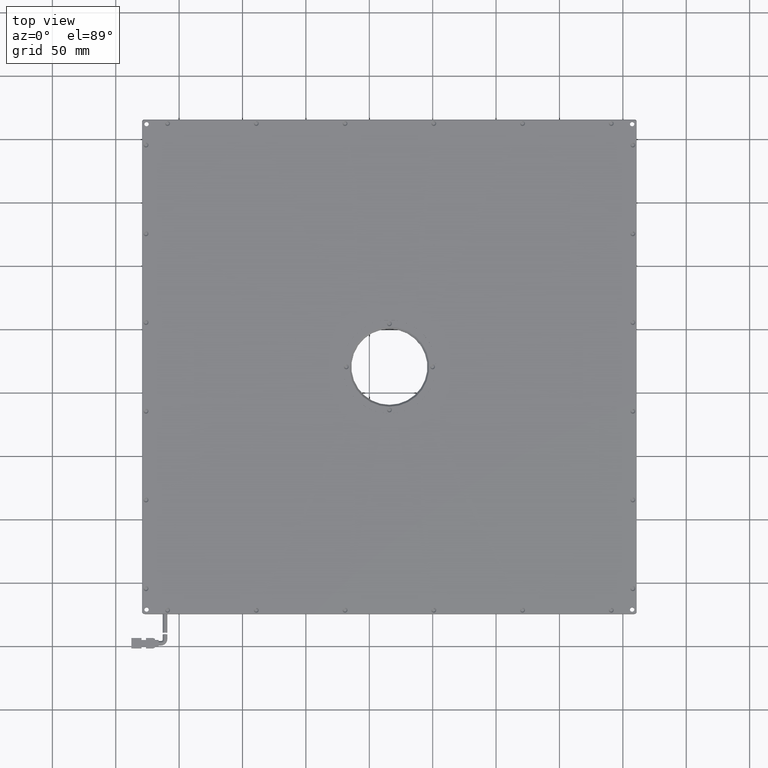
[diagram: clean part render]
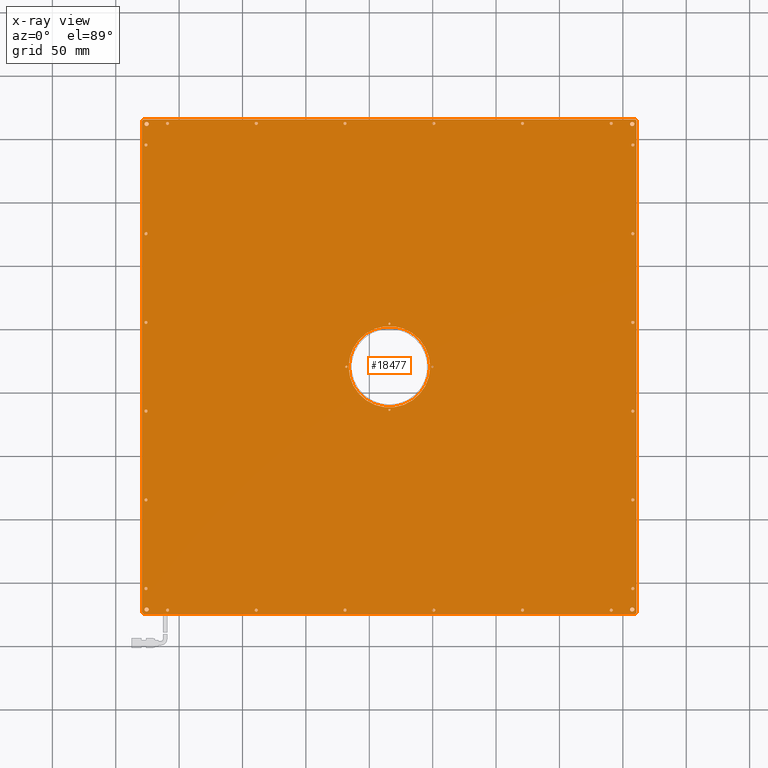
[diagram: x-ray — body ghosted, one internal face saturated and labeled with its STEP entity id]
A machine part, top view, then the same camera in x-ray: the body is ghosted and one INTERNAL B-rep face — a face not visible from any outside direction — is saturated and labeled: STEP entity #18477.
In plain terms, the highlighted planar face has unit normal (0, -0, 1).
Its self-contained STEP definition (entity closure, byte-faithful):
#37 = ORIENTED_EDGE ( 'NONE', *, *, #15679, .F. ) ;
#60 = EDGE_CURVE ( 'NONE', #16552, #8781, #17096, .T. ) ;
#66 = CIRCLE ( 'NONE', #9073, 1.749999999999973800 ) ;
#69 = CARTESIAN_POINT ( 'NONE',  ( 140.8515982014610300, 212.4229729729719300, 4.249999999999998200 ) ) ;
#85 = DIRECTION ( 'NONE',  ( 0.0000000000000000000, 0.0000000000000000000, -1.000000000000000000 ) ) ;
#93 = CARTESIAN_POINT ( 'NONE',  ( -0.1484017985389427000, 20.42297297297182000, 4.249999999999998200 ) ) ;
#153 = DIRECTION ( 'NONE',  ( 1.000000000000000000, 0.0000000000000000000, 0.0000000000000000000 ) ) ;
#312 = CARTESIAN_POINT ( 'NONE',  ( -207.9484017985389200, -171.5770270270280700, 4.249999999999998200 ) ) ;
#313 = AXIS2_PLACEMENT_3D ( 'NONE', #9867, #21994, #11778 ) ;
#322 = ORIENTED_EDGE ( 'NONE', *, *, #11977, .F. ) ;
#334 = AXIS2_PLACEMENT_3D ( 'NONE', #12325, #13894, #3683 ) ;
#388 = ORIENTED_EDGE ( 'NONE', *, *, #9168, .T. ) ;
#407 = CIRCLE ( 'NONE', #10317, 1.200000000000006600 ) ;
#428 = DIRECTION ( 'NONE',  ( 1.000000000000000000, 0.0000000000000000000, 0.0000000000000000000 ) ) ;
#433 = FACE_BOUND ( 'NONE', #8652, .T. ) ;
#437 = EDGE_LOOP ( 'NONE', ( #656, #7422 ) ) ;
#451 = DIRECTION ( 'NONE',  ( 0.0000000000000000000, 0.0000000000000000000, -1.000000000000000000 ) ) ;
#496 = EDGE_LOOP ( 'NONE', ( #11833, #4329 ) ) ;
#512 = ORIENTED_EDGE ( 'NONE', *, *, #10619, .F. ) ;
#547 = ORIENTED_EDGE ( 'NONE', *, *, #7066, .F. ) ;
#584 = AXIS2_PLACEMENT_3D ( 'NONE', #16470, #6250, #13246 ) ;
#592 = VERTEX_POINT ( 'NONE', #1178 ) ;
#613 = CIRCLE ( 'NONE', #18979, 1.749999999999973800 ) ;
#656 = ORIENTED_EDGE ( 'NONE', *, *, #5249, .F. ) ;
#699 = FACE_BOUND ( 'NONE', #1630, .T. ) ;
#704 = CARTESIAN_POINT ( 'NONE',  ( -227.3484017985378500, 125.4229729729738900, 4.249999999999998200 ) ) ;
#716 = DIRECTION ( 'NONE',  ( 1.000000000000000000, 0.0000000000000000000, 0.0000000000000000000 ) ) ;
#768 = CIRCLE ( 'NONE', #21038, 1.200000000000006600 ) ;
#816 = AXIS2_PLACEMENT_3D ( 'NONE', #14785, #19612, #12895 ) ;
#836 = EDGE_CURVE ( 'NONE', #971, #1896, #11999, .T. ) ;
#843 = CIRCLE ( 'NONE', #15122, 1.200000000000006600 ) ;
#856 = DIRECTION ( 'NONE',  ( 0.0000000000000000000, 0.0000000000000000000, -1.000000000000000000 ) ) ;
#867 = VERTEX_POINT ( 'NONE', #3752 ) ;
#879 = CIRCLE ( 'NONE', #20041, 32.10000000000000100 ) ;
#921 = CIRCLE ( 'NONE', #5101, 1.200000000000006600 ) ;
#971 = VERTEX_POINT ( 'NONE', #7474 ) ;
#975 = CARTESIAN_POINT ( 'NONE',  ( 70.85159820146100200, 212.4229729729719100, 4.249999999999998200 ) ) ;
#980 = CIRCLE ( 'NONE', #313, 1.200000000000006600 ) ;
#982 = DIRECTION ( 'NONE',  ( 0.0000000000000000000, 0.0000000000000000000, -1.000000000000000000 ) ) ;
#986 = FACE_BOUND ( 'NONE', #17874, .T. ) ;
#987 = ORIENTED_EDGE ( 'NONE', *, *, #2250, .F. ) ;
#1044 = DIRECTION ( 'NONE',  ( 1.000000000000000000, 0.0000000000000000000, 0.0000000000000000000 ) ) ;
#1124 = DIRECTION ( 'NONE',  ( 1.000000000000000000, 0.0000000000000000000, 0.0000000000000000000 ) ) ;
#1148 = EDGE_LOOP ( 'NONE', ( #14710, #14784 ) ) ;
#1154 = AXIS2_PLACEMENT_3D ( 'NONE', #8714, #1936, #7190 ) ;
#1178 = CARTESIAN_POINT ( 'NONE',  ( 0.6515982014610456300, 20.42297297297182000, 4.249999999999998200 ) ) ;
#1198 = DIRECTION ( 'NONE',  ( 0.0000000000000000000, 0.0000000000000000000, -1.000000000000000000 ) ) ;
#1287 = CIRCLE ( 'NONE', #10055, 1.200000000000006600 ) ;
#1318 = DIRECTION ( 'NONE',  ( 1.000000000000000000, 0.0000000000000000000, 0.0000000000000000000 ) ) ;
#1320 = ORIENTED_EDGE ( 'NONE', *, *, #16686, .T. ) ;
#1495 = CARTESIAN_POINT ( 'NONE',  ( 156.6515982014609000, -14.57702702702867700, 4.249999999999998200 ) ) ;
#1517 = FACE_BOUND ( 'NONE', #6923, .T. ) ;
#1524 = PLANE ( 'NONE',  #9392 ) ;
#1542 = CARTESIAN_POINT ( 'NONE',  ( 157.3515982014610000, 211.9229729729719300, 4.249999999999998200 ) ) ;
#1561 = DIRECTION ( 'NONE',  ( 1.000000000000000000, 0.0000000000000000000, 0.0000000000000000000 ) ) ;
#1630 = EDGE_LOOP ( 'NONE', ( #11768, #2041 ) ) ;
#1700 = VECTOR ( 'NONE', #5086, 1000.000000000000000 ) ;
#1702 = AXIS2_PLACEMENT_3D ( 'NONE', #14950, #4707, #4478 ) ;
#1708 = CIRCLE ( 'NONE', #9664, 1.200000000000006600 ) ;
#1750 = ORIENTED_EDGE ( 'NONE', *, *, #12685, .F. ) ;
#1764 = DIRECTION ( 'NONE',  ( 0.0000000000000000000, 0.0000000000000000000, -1.000000000000000000 ) ) ;
#1766 = DIRECTION ( 'NONE',  ( 0.0000000000000000000, 0.0000000000000000000, -1.000000000000000000 ) ) ;
#1767 = EDGE_CURVE ( 'NONE', #7465, #12635, #20159, .T. ) ;
#1770 = AXIS2_PLACEMENT_3D ( 'NONE', #4145, #14438, #17809 ) ;
#1785 = AXIS2_PLACEMENT_3D ( 'NONE', #10318, #1764, #20277 ) ;
#1790 = FACE_BOUND ( 'NONE', #7299, .T. ) ;
#1822 = CARTESIAN_POINT ( 'NONE',  ( 139.6515982014611600, -171.5770270270280100, 4.249999999999998200 ) ) ;
#1896 = VERTEX_POINT ( 'NONE', #12410 ) ;
#1936 = DIRECTION ( 'NONE',  ( 0.0000000000000000000, 0.0000000000000000000, -1.000000000000000000 ) ) ;
#1992 = CIRCLE ( 'NONE', #12390, 1.200000000000006600 ) ;
#1996 = ORIENTED_EDGE ( 'NONE', *, *, #6813, .F. ) ;
#2033 = DIRECTION ( 'NONE',  ( 0.0000000000000000000, 0.0000000000000000000, -1.000000000000000000 ) ) ;
#2041 = ORIENTED_EDGE ( 'NONE', *, *, #8170, .F. ) ;
#2157 = ORIENTED_EDGE ( 'NONE', *, *, #7520, .F. ) ;
#2210 = CIRCLE ( 'NONE', #5179, 0.7999999999999882800 ) ;
#2229 = CARTESIAN_POINT ( 'NONE',  ( -226.1484017985392800, -14.57702702702612300, 4.249999999999998200 ) ) ;
#2250 = EDGE_CURVE ( 'NONE', #16874, #18018, #11038, .T. ) ;
#2256 = CIRCLE ( 'NONE', #5461, 1.200000000000006600 ) ;
#2257 = DIRECTION ( 'NONE',  ( 1.000000000000000000, 0.0000000000000000000, 0.0000000000000000000 ) ) ;
#2272 = DIRECTION ( 'NONE',  ( 1.000000000000000000, 0.0000000000000000000, 0.0000000000000000000 ) ) ;
#2277 = ORIENTED_EDGE ( 'NONE', *, *, #19265, .F. ) ;
#2281 = CARTESIAN_POINT ( 'NONE',  ( 159.0515982014616200, 195.4229729729713400, 4.249999999999998200 ) ) ;
#2309 = EDGE_CURVE ( 'NONE', #19540, #7929, #10787, .T. ) ;
#2406 = EDGE_LOOP ( 'NONE', ( #17455, #4030 ) ) ;
#2508 = VERTEX_POINT ( 'NONE', #7794 ) ;
#2544 = CARTESIAN_POINT ( 'NONE',  ( -209.1484017985390600, 212.4229729729718800, 4.249999999999998200 ) ) ;
#2559 = FACE_BOUND ( 'NONE', #11836, .T. ) ;
#2610 = DIRECTION ( 'NONE',  ( 1.000000000000000000, 0.0000000000000000000, 0.0000000000000000000 ) ) ;
#2660 = AXIS2_PLACEMENT_3D ( 'NONE', #6905, #12134, #5282 ) ;
#2662 = CARTESIAN_POINT ( 'NONE',  ( -34.14840179853894900, -13.57702702702806600, 4.249999999999998200 ) ) ;
#2766 = ORIENTED_EDGE ( 'NONE', *, *, #10741, .F. ) ;
#2770 = EDGE_LOOP ( 'NONE', ( #17191, #12116 ) ) ;
#2814 = FACE_OUTER_BOUND ( 'NONE', #20669, .T. ) ;
#2872 = DIRECTION ( 'NONE',  ( 1.000000000000000000, 0.0000000000000000000, 0.0000000000000000000 ) ) ;
#2956 = DIRECTION ( 'NONE',  ( 0.0000000000000000000, 0.0000000000000000000, -1.000000000000000000 ) ) ;
#3007 = CARTESIAN_POINT ( 'NONE',  ( 160.8515982014610000, -173.5770270270280100, 4.249999999999996400 ) ) ;
#3013 = EDGE_CURVE ( 'NONE', #6949, #17093, #9609, .T. ) ;
#3058 = CARTESIAN_POINT ( 'NONE',  ( 159.8515982014609400, 215.4229729729719300, 4.249999999999996400 ) ) ;
#3132 = CARTESIAN_POINT ( 'NONE',  ( 142.0515982014610500, 212.4229729729719300, 4.249999999999998200 ) ) ;
#3248 = DIRECTION ( 'NONE',  ( 0.0000000000000000000, 0.0000000000000000000, -1.000000000000000000 ) ) ;
#3264 = CARTESIAN_POINT ( 'NONE',  ( -224.9484017985392900, -14.57702702702612300, 4.249999999999998200 ) ) ;
#3386 = ORIENTED_EDGE ( 'NONE', *, *, #4757, .F. ) ;
#3467 = DIRECTION ( 'NONE',  ( 0.0000000000000000000, 0.0000000000000000000, -1.000000000000000000 ) ) ;
#3468 = VERTEX_POINT ( 'NONE', #17912 ) ;
#3556 = CARTESIAN_POINT ( 'NONE',  ( -139.1484017985390300, 212.4229729729718800, 4.249999999999998200 ) ) ;
#3618 = DIRECTION ( 'NONE',  ( 0.0000000000000000000, 0.0000000000000000000, -1.000000000000000000 ) ) ;
#3638 = EDGE_CURVE ( 'NONE', #13348, #3468, #11927, .T. ) ;
#3683 = DIRECTION ( 'NONE',  ( 1.000000000000000000, 0.0000000000000000000, 0.0000000000000000000 ) ) ;
#3704 = ORIENTED_EDGE ( 'NONE', *, *, #22012, .F. ) ;
#3752 = CARTESIAN_POINT ( 'NONE',  ( -207.9484017985390400, 212.4229729729718800, 4.249999999999998200 ) ) ;
#3753 = DIRECTION ( 'NONE',  ( 1.000000000000000000, 0.0000000000000000000, 0.0000000000000000000 ) ) ;
#3799 = ORIENTED_EDGE ( 'NONE', *, *, #3999, .F. ) ;
#3853 = CARTESIAN_POINT ( 'NONE',  ( 140.8515982014611400, -171.5770270270280100, 4.249999999999998200 ) ) ;
#3873 = FACE_BOUND ( 'NONE', #18926, .T. ) ;
#3897 = ORIENTED_EDGE ( 'NONE', *, *, #14134, .F. ) ;
#3910 = AXIS2_PLACEMENT_3D ( 'NONE', #4202, #4144, #7728 ) ;
#3931 = AXIS2_PLACEMENT_3D ( 'NONE', #975, #451, #12943 ) ;
#3999 = EDGE_CURVE ( 'NONE', #18639, #21330, #9253, .T. ) ;
#4021 = VERTEX_POINT ( 'NONE', #20360 ) ;
#4030 = ORIENTED_EDGE ( 'NONE', *, *, #18046, .F. ) ;
#4130 = VERTEX_POINT ( 'NONE', #10456 ) ;
#4144 = DIRECTION ( 'NONE',  ( 0.0000000000000000000, 0.0000000000000000000, -1.000000000000000000 ) ) ;
#4145 = CARTESIAN_POINT ( 'NONE',  ( -226.1484017985385700, 55.42297297297388100, 4.249999999999998200 ) ) ;
#4202 = CARTESIAN_POINT ( 'NONE',  ( 157.8515982014616000, 195.4229729729713400, 4.249999999999998200 ) ) ;
#4291 = VERTEX_POINT ( 'NONE', #14381 ) ;
#4292 = VERTEX_POINT ( 'NONE', #5897 ) ;
#4329 = ORIENTED_EDGE ( 'NONE', *, *, #6019, .F. ) ;
#4361 = CIRCLE ( 'NONE', #3910, 1.200000000000006600 ) ;
#4379 = FACE_BOUND ( 'NONE', #17965, .T. ) ;
#4463 = VERTEX_POINT ( 'NONE', #8125 ) ;
#4478 = DIRECTION ( 'NONE',  ( 1.000000000000000000, 0.0000000000000000000, 0.0000000000000000000 ) ) ;
#4549 = VERTEX_POINT ( 'NONE', #8496 ) ;
#4577 = CARTESIAN_POINT ( 'NONE',  ( -226.1484017985400200, -84.57702702702613400, 4.249999999999998200 ) ) ;
#4622 = VERTEX_POINT ( 'NONE', #312 ) ;
#4628 = DIRECTION ( 'NONE',  ( 0.0000000000000000000, 0.0000000000000000000, -1.000000000000000000 ) ) ;
#4687 = EDGE_CURVE ( 'NONE', #12635, #7465, #8681, .T. ) ;
#4707 = DIRECTION ( 'NONE',  ( 0.0000000000000000000, 0.0000000000000000000, -1.000000000000000000 ) ) ;
#4714 = DIRECTION ( 'NONE',  ( 1.000000000000000000, 0.0000000000000000000, 0.0000000000000000000 ) ) ;
#4720 = CARTESIAN_POINT ( 'NONE',  ( 159.1015982014603500, -171.0770270270286900, 4.249999999999998200 ) ) ;
#4727 = ORIENTED_EDGE ( 'NONE', *, *, #9577, .F. ) ;
#4757 = EDGE_CURVE ( 'NONE', #15670, #11715, #15626, .T. ) ;
#4782 = EDGE_CURVE ( 'NONE', #6692, #4463, #21989, .T. ) ;
#4800 = AXIS2_PLACEMENT_3D ( 'NONE', #11755, #6898, #15263 ) ;
#4806 = CARTESIAN_POINT ( 'NONE',  ( -210.3484017985390700, 212.4229729729718800, 4.249999999999998200 ) ) ;
#4815 = CARTESIAN_POINT ( 'NONE',  ( 69.65159820146114100, -171.5770270270280100, 4.249999999999998200 ) ) ;
#4846 = EDGE_CURVE ( 'NONE', #7929, #19540, #4361, .T. ) ;
#4851 = VERTEX_POINT ( 'NONE', #19640 ) ;
#4879 = CIRCLE ( 'NONE', #5814, 1.200000000000006600 ) ;
#4906 = CARTESIAN_POINT ( 'NONE',  ( 156.6515982014604400, -154.5770270270286900, 4.249999999999998200 ) ) ;
#4946 = CARTESIAN_POINT ( 'NONE',  ( -225.6484017985369500, 211.9229729729738900, 4.249999999999998200 ) ) ;
#4953 = CARTESIAN_POINT ( 'NONE',  ( 156.6515982014611300, 55.42297297297133700, 4.249999999999998200 ) ) ;
#4957 = FACE_BOUND ( 'NONE', #1148, .T. ) ;
#4958 = VERTEX_POINT ( 'NONE', #1822 ) ;
#4964 = VERTEX_POINT ( 'NONE', #13790 ) ;
#4998 = DIRECTION ( 'NONE',  ( 1.000000000000000000, 0.0000000000000000000, 0.0000000000000000000 ) ) ;
#5041 = VERTEX_POINT ( 'NONE', #20874 ) ;
#5078 = ORIENTED_EDGE ( 'NONE', *, *, #10018, .F. ) ;
#5086 = DIRECTION ( 'NONE',  ( 1.000000000000000000, 0.0000000000000000000, -0.0000000000000000000 ) ) ;
#5091 = DIRECTION ( 'NONE',  ( 0.0000000000000000000, 0.0000000000000000000, -1.000000000000000000 ) ) ;
#5101 = AXIS2_PLACEMENT_3D ( 'NONE', #13799, #1766, #15463 ) ;
#5131 = CARTESIAN_POINT ( 'NONE',  ( -140.3484017985389000, -171.5770270270280400, 4.249999999999998200 ) ) ;
#5151 = CIRCLE ( 'NONE', #11732, 0.7999999999999882800 ) ;
#5167 = VERTEX_POINT ( 'NONE', #9400 ) ;
#5179 = AXIS2_PLACEMENT_3D ( 'NONE', #20600, #10612, #3753 ) ;
#5225 = AXIS2_PLACEMENT_3D ( 'NONE', #20028, #8119, #21742 ) ;
#5236 = CARTESIAN_POINT ( 'NONE',  ( -229.1484017985390300, 215.4229729729718800, 4.249999999999998200 ) ) ;
#5249 = EDGE_CURVE ( 'NONE', #3468, #13348, #17435, .T. ) ;
#5282 = DIRECTION ( 'NONE',  ( 1.000000000000000000, 0.0000000000000000000, 0.0000000000000000000 ) ) ;
#5318 = CARTESIAN_POINT ( 'NONE',  ( -229.1484017985390300, -173.5770270270282100, 4.249999999999996400 ) ) ;
#5458 = CIRCLE ( 'NONE', #816, 1.200000000000006600 ) ;
#5461 = AXIS2_PLACEMENT_3D ( 'NONE', #19078, #5515, #7065 ) ;
#5515 = DIRECTION ( 'NONE',  ( 0.0000000000000000000, 0.0000000000000000000, -1.000000000000000000 ) ) ;
#5519 = FACE_BOUND ( 'NONE', #8887, .T. ) ;
#5522 = CARTESIAN_POINT ( 'NONE',  ( -229.1484017985390300, 215.4229729729719300, 4.249999999999998200 ) ) ;
#5564 = DIRECTION ( 'NONE',  ( 0.0000000000000000000, 0.0000000000000000000, -1.000000000000000000 ) ) ;
#5583 = DIRECTION ( 'NONE',  ( 0.0000000000000000000, 0.0000000000000000000, -1.000000000000000000 ) ) ;
#5613 = CARTESIAN_POINT ( 'NONE',  ( 159.0515982014606800, -84.57702702702867700, 4.249999999999998200 ) ) ;
#5644 = ORIENTED_EDGE ( 'NONE', *, *, #836, .F. ) ;
#5706 = EDGE_CURVE ( 'NONE', #14812, #2508, #16319, .T. ) ;
#5789 = CIRCLE ( 'NONE', #14975, 1.749999999999973800 ) ;
#5804 = CARTESIAN_POINT ( 'NONE',  ( 157.8515982014616000, 195.4229729729713400, 4.249999999999998200 ) ) ;
#5814 = AXIS2_PLACEMENT_3D ( 'NONE', #13280, #6788, #18439 ) ;
#5871 = ORIENTED_EDGE ( 'NONE', *, *, #19304, .F. ) ;
#5897 = CARTESIAN_POINT ( 'NONE',  ( 159.8515982014609400, -174.5770270270280700, 4.249999999999996400 ) ) ;
#5902 = VERTEX_POINT ( 'NONE', #8550 ) ;
#6019 = EDGE_CURVE ( 'NONE', #12868, #18478, #8623, .T. ) ;
#6091 = VERTEX_POINT ( 'NONE', #17271 ) ;
#6095 = ORIENTED_EDGE ( 'NONE', *, *, #15671, .T. ) ;
#6166 = EDGE_CURVE ( 'NONE', #4549, #4292, #10252, .T. ) ;
#6173 = EDGE_CURVE ( 'NONE', #9208, #12501, #4879, .T. ) ;
#6193 = CARTESIAN_POINT ( 'NONE',  ( -227.3984017985369200, 211.9229729729738900, 4.249999999999998200 ) ) ;
#6250 = DIRECTION ( 'NONE',  ( 0.0000000000000000000, 0.0000000000000000000, -1.000000000000000000 ) ) ;
#6296 = ORIENTED_EDGE ( 'NONE', *, *, #8094, .F. ) ;
#6305 = DIRECTION ( 'NONE',  ( 1.000000000000000000, 0.0000000000000000000, 0.0000000000000000000 ) ) ;
#6348 = CIRCLE ( 'NONE', #16138, 1.200000000000006600 ) ;
#6382 = ORIENTED_EDGE ( 'NONE', *, *, #1767, .F. ) ;
#6427 = VERTEX_POINT ( 'NONE', #4906 ) ;
#6465 = EDGE_CURVE ( 'NONE', #18478, #12868, #19537, .T. ) ;
#6534 = FACE_BOUND ( 'NONE', #10769, .T. ) ;
#6559 = FACE_BOUND ( 'NONE', #14344, .T. ) ;
#6580 = DIRECTION ( 'NONE',  ( 0.0000000000000000000, 0.0000000000000000000, -1.000000000000000000 ) ) ;
#6586 = DIRECTION ( 'NONE',  ( 1.000000000000000000, 0.0000000000000000000, 0.0000000000000000000 ) ) ;
#6609 = AXIS2_PLACEMENT_3D ( 'NONE', #2662, #11066, #14351 ) ;
#6664 = CIRCLE ( 'NONE', #10545, 1.200000000000006600 ) ;
#6692 = VERTEX_POINT ( 'NONE', #14442 ) ;
#6721 = ORIENTED_EDGE ( 'NONE', *, *, #15929, .F. ) ;
#6770 = CIRCLE ( 'NONE', #7841, 1.749999999999973800 ) ;
#6779 = LINE ( 'NONE', #7895, #14011 ) ;
#6788 = DIRECTION ( 'NONE',  ( 0.0000000000000000000, 0.0000000000000000000, -1.000000000000000000 ) ) ;
#6794 = CARTESIAN_POINT ( 'NONE',  ( 157.8515982014613700, 125.4229729729713400, 4.249999999999998200 ) ) ;
#6813 = EDGE_CURVE ( 'NONE', #7012, #9681, #843, .T. ) ;
#6844 = EDGE_CURVE ( 'NONE', #12501, #9208, #14429, .T. ) ;
#6894 = DIRECTION ( 'NONE',  ( 0.0000000000000000000, 0.0000000000000000000, -1.000000000000000000 ) ) ;
#6898 = DIRECTION ( 'NONE',  ( 0.0000000000000000000, 0.0000000000000000000, -1.000000000000000000 ) ) ;
#6905 = CARTESIAN_POINT ( 'NONE',  ( 157.8515982014604300, -154.5770270270286900, 4.249999999999998200 ) ) ;
#6917 = CARTESIAN_POINT ( 'NONE',  ( -69.14840179853889900, -171.5770270270280400, 4.249999999999998200 ) ) ;
#6923 = EDGE_LOOP ( 'NONE', ( #12370, #9209 ) ) ;
#6949 = VERTEX_POINT ( 'NONE', #13452 ) ;
#7012 = VERTEX_POINT ( 'NONE', #4953 ) ;
#7065 = DIRECTION ( 'NONE',  ( 1.000000000000000000, 0.0000000000000000000, 0.0000000000000000000 ) ) ;
#7066 = EDGE_CURVE ( 'NONE', #18132, #17429, #10398, .T. ) ;
#7069 = VERTEX_POINT ( 'NONE', #18849 ) ;
#7187 = VERTEX_POINT ( 'NONE', #16080 ) ;
#7190 = DIRECTION ( 'NONE',  ( 1.000000000000000000, 0.0000000000000000000, 0.0000000000000000000 ) ) ;
#7294 = EDGE_CURVE ( 'NONE', #14195, #4958, #14651, .T. ) ;
#7299 = EDGE_LOOP ( 'NONE', ( #20978, #3704 ) ) ;
#7365 = FACE_BOUND ( 'NONE', #11022, .T. ) ;
#7422 = ORIENTED_EDGE ( 'NONE', *, *, #3638, .F. ) ;
#7426 = AXIS2_PLACEMENT_3D ( 'NONE', #21437, #9974, #16592 ) ;
#7431 = DIRECTION ( 'NONE',  ( 1.000000000000000000, 0.0000000000000000000, 0.0000000000000000000 ) ) ;
#7465 = VERTEX_POINT ( 'NONE', #3264 ) ;
#7474 = CARTESIAN_POINT ( 'NONE',  ( -224.9484017985371100, 195.4229729729738900, 4.249999999999998200 ) ) ;
#7475 = DIRECTION ( 'NONE',  ( 0.0000000000000000000, 0.0000000000000000000, -1.000000000000000000 ) ) ;
#7479 = EDGE_LOOP ( 'NONE', ( #10717, #9121 ) ) ;
#7520 = EDGE_CURVE ( 'NONE', #21846, #6427, #13538, .T. ) ;
#7541 = EDGE_LOOP ( 'NONE', ( #2157, #7829 ) ) ;
#7603 = EDGE_LOOP ( 'NONE', ( #21571, #9463 ) ) ;
#7635 = EDGE_CURVE ( 'NONE', #12158, #7187, #17019, .T. ) ;
#7658 = AXIS2_PLACEMENT_3D ( 'NONE', #5804, #17810, #21218 ) ;
#7700 = ORIENTED_EDGE ( 'NONE', *, *, #10269, .F. ) ;
#7728 = DIRECTION ( 'NONE',  ( 1.000000000000000000, 0.0000000000000000000, 0.0000000000000000000 ) ) ;
#7748 = DIRECTION ( 'NONE',  ( 1.000000000000000000, 0.0000000000000000000, 0.0000000000000000000 ) ) ;
#7794 = CARTESIAN_POINT ( 'NONE',  ( 72.05159820146100500, 212.4229729729719100, 4.249999999999998200 ) ) ;
#7829 = ORIENTED_EDGE ( 'NONE', *, *, #17467, .F. ) ;
#7840 = EDGE_CURVE ( 'NONE', #5902, #18018, #18618, .T. ) ;
#7841 = AXIS2_PLACEMENT_3D ( 'NONE', #1542, #2956, #4714 ) ;
#7869 = DIRECTION ( 'NONE',  ( 1.000000000000000000, 0.0000000000000000000, 0.0000000000000000000 ) ) ;
#7895 = CARTESIAN_POINT ( 'NONE',  ( -229.1484017985390800, 215.4229729729718800, 4.249999999999998200 ) ) ;
#7914 = AXIS2_PLACEMENT_3D ( 'NONE', #16665, #3248, #15243 ) ;
#7915 = CARTESIAN_POINT ( 'NONE',  ( -137.9484017985390100, 212.4229729729718800, 4.249999999999998200 ) ) ;
#7929 = VERTEX_POINT ( 'NONE', #19825 ) ;
#8016 = DIRECTION ( 'NONE',  ( 0.0000000000000000000, 0.0000000000000000000, -1.000000000000000000 ) ) ;
#8071 = ORIENTED_EDGE ( 'NONE', *, *, #15831, .F. ) ;
#8094 = EDGE_CURVE ( 'NONE', #1896, #971, #980, .T. ) ;
#8099 = ORIENTED_EDGE ( 'NONE', *, *, #5706, .F. ) ;
#8119 = DIRECTION ( 'NONE',  ( 0.0000000000000000000, 0.0000000000000000000, -1.000000000000000000 ) ) ;
#8125 = CARTESIAN_POINT ( 'NONE',  ( -34.94840179853893100, 54.42297297297194100, 4.249999999999998200 ) ) ;
#8170 = EDGE_CURVE ( 'NONE', #12343, #592, #17229, .T. ) ;
#8275 = DIRECTION ( 'NONE',  ( 1.000000000000000000, 0.0000000000000000000, 0.0000000000000000000 ) ) ;
#8330 = DIRECTION ( 'NONE',  ( 1.000000000000000000, 0.0000000000000000000, 0.0000000000000000000 ) ) ;
#8369 = ORIENTED_EDGE ( 'NONE', *, *, #60, .F. ) ;
#8419 = FACE_BOUND ( 'NONE', #10157, .T. ) ;
#8434 = EDGE_LOOP ( 'NONE', ( #12562, #4727 ) ) ;
#8473 = DIRECTION ( 'NONE',  ( 1.000000000000000000, 0.0000000000000000000, 0.0000000000000000000 ) ) ;
#8496 = CARTESIAN_POINT ( 'NONE',  ( -228.1484017985390800, -174.5770270270281200, 4.249999999999996400 ) ) ;
#8516 = CARTESIAN_POINT ( 'NONE',  ( 155.6015982014610300, 211.9229729729719300, 4.249999999999998200 ) ) ;
#8547 = DIRECTION ( 'NONE',  ( 0.0000000000000000000, 0.0000000000000000000, -1.000000000000000000 ) ) ;
#8550 = CARTESIAN_POINT ( 'NONE',  ( -229.1484017985390300, 214.4229729729717100, 4.249999999999996400 ) ) ;
#8623 = CIRCLE ( 'NONE', #18365, 1.200000000000006600 ) ;
#8634 = DIRECTION ( 'NONE',  ( 1.000000000000000000, 0.0000000000000000000, 0.0000000000000000000 ) ) ;
#8645 = EDGE_CURVE ( 'NONE', #4130, #20190, #921, .T. ) ;
#8652 = EDGE_LOOP ( 'NONE', ( #11289, #8099 ) ) ;
#8681 = CIRCLE ( 'NONE', #12622, 1.200000000000006600 ) ;
#8714 = CARTESIAN_POINT ( 'NONE',  ( 157.8515982014604300, -154.5770270270286900, 4.249999999999998200 ) ) ;
#8716 = AXIS2_PLACEMENT_3D ( 'NONE', #11514, #8016, #18370 ) ;
#8771 = VERTEX_POINT ( 'NONE', #8962 ) ;
#8781 = VERTEX_POINT ( 'NONE', #704 ) ;
#8783 = CARTESIAN_POINT ( 'NONE',  ( 157.3515982014603800, -171.0770270270286900, 4.249999999999998200 ) ) ;
#8863 = EDGE_CURVE ( 'NONE', #20504, #12509, #1992, .T. ) ;
#8887 = EDGE_LOOP ( 'NONE', ( #5644, #6296 ) ) ;
#8893 = AXIS2_PLACEMENT_3D ( 'NONE', #15126, #1198, #1561 ) ;
#8947 = DIRECTION ( 'NONE',  ( 1.000000000000000000, 0.0000000000000000000, 0.0000000000000000000 ) ) ;
#8962 = CARTESIAN_POINT ( 'NONE',  ( -0.3484017985389970000, 212.4229729729719100, 4.249999999999998200 ) ) ;
#9017 = DIRECTION ( 'NONE',  ( 0.0000000000000000000, 0.0000000000000000000, -1.000000000000000000 ) ) ;
#9064 = CARTESIAN_POINT ( 'NONE',  ( 156.6515982014606400, -84.57702702702867700, 4.249999999999998200 ) ) ;
#9073 = AXIS2_PLACEMENT_3D ( 'NONE', #4946, #13293, #1318 ) ;
#9121 = ORIENTED_EDGE ( 'NONE', *, *, #11683, .F. ) ;
#9149 = CARTESIAN_POINT ( 'NONE',  ( 157.8515982014609200, -14.57702702702867700, 4.249999999999998200 ) ) ;
#9166 = EDGE_CURVE ( 'NONE', #11826, #867, #6348, .T. ) ;
#9168 = EDGE_CURVE ( 'NONE', #4549, #19934, #21039, .T. ) ;
#9206 = AXIS2_PLACEMENT_3D ( 'NONE', #3556, #6894, #8634 ) ;
#9208 = VERTEX_POINT ( 'NONE', #16061 ) ;
#9209 = ORIENTED_EDGE ( 'NONE', *, *, #9166, .F. ) ;
#9211 = LINE ( 'NONE', #3058, #9480 ) ;
#9226 = CARTESIAN_POINT ( 'NONE',  ( -34.14840179853894900, 20.42297297297193700, 4.249999999999998200 ) ) ;
#9230 = EDGE_LOOP ( 'NONE', ( #7700, #9709 ) ) ;
#9232 = CIRCLE ( 'NONE', #584, 1.199999999999999700 ) ;
#9253 = CIRCLE ( 'NONE', #1785, 1.200000000000006600 ) ;
#9285 = EDGE_CURVE ( 'NONE', #11157, #21716, #18923, .T. ) ;
#9286 = EDGE_CURVE ( 'NONE', #4021, #9328, #17037, .T. ) ;
#9328 = VERTEX_POINT ( 'NONE', #7915 ) ;
#9376 = CARTESIAN_POINT ( 'NONE',  ( -34.14840179853894900, 20.42297297297193700, 4.249999999999998200 ) ) ;
#9392 = AXIS2_PLACEMENT_3D ( 'NONE', #5236, #13496, #15301 ) ;
#9400 = CARTESIAN_POINT ( 'NONE',  ( -227.3484017985407800, -154.5770270270261300, 4.249999999999998200 ) ) ;
#9435 = VERTEX_POINT ( 'NONE', #6193 ) ;
#9463 = ORIENTED_EDGE ( 'NONE', *, *, #13413, .F. ) ;
#9480 = VECTOR ( 'NONE', #9544, 1000.000000000000000 ) ;
#9484 = FACE_BOUND ( 'NONE', #7479, .T. ) ;
#9544 = DIRECTION ( 'NONE',  ( 0.7071067811865672200, -0.7071067811865279200, 0.0000000000000000000 ) ) ;
#9555 = DIRECTION ( 'NONE',  ( 0.0000000000000000000, 0.0000000000000000000, -1.000000000000000000 ) ) ;
#9563 = DIRECTION ( 'NONE',  ( 1.000000000000000000, 0.0000000000000000000, 0.0000000000000000000 ) ) ;
#9577 = EDGE_CURVE ( 'NONE', #20190, #4130, #21534, .T. ) ;
#9609 = CIRCLE ( 'NONE', #13236, 1.200000000000006600 ) ;
#9654 = VECTOR ( 'NONE', #12823, 1000.000000000000100 ) ;
#9664 = AXIS2_PLACEMENT_3D ( 'NONE', #16346, #9555, #11258 ) ;
#9681 = VERTEX_POINT ( 'NONE', #12081 ) ;
#9709 = ORIENTED_EDGE ( 'NONE', *, *, #13786, .F. ) ;
#9759 = CARTESIAN_POINT ( 'NONE',  ( 157.8515982014611400, 55.42297297297133700, 4.249999999999998200 ) ) ;
#9867 = CARTESIAN_POINT ( 'NONE',  ( -226.1484017985371200, 195.4229729729738900, 4.249999999999998200 ) ) ;
#9914 = ORIENTED_EDGE ( 'NONE', *, *, #10642, .F. ) ;
#9974 = DIRECTION ( 'NONE',  ( 0.0000000000000000000, 0.0000000000000000000, -1.000000000000000000 ) ) ;
#10003 = VERTEX_POINT ( 'NONE', #3132 ) ;
#10004 = CARTESIAN_POINT ( 'NONE',  ( -209.1484017985389400, -171.5770270270280700, 4.249999999999998200 ) ) ;
#10018 = EDGE_CURVE ( 'NONE', #12753, #4622, #14029, .T. ) ;
#10045 = DIRECTION ( 'NONE',  ( 1.000000000000000000, 0.0000000000000000000, 0.0000000000000000000 ) ) ;
#10049 = CARTESIAN_POINT ( 'NONE',  ( 157.3515982014603800, -171.0770270270286900, 4.249999999999998200 ) ) ;
#10055 = AXIS2_PLACEMENT_3D ( 'NONE', #21193, #14119, #14723 ) ;
#10122 = CARTESIAN_POINT ( 'NONE',  ( 139.6515982014610400, 212.4229729729719300, 4.249999999999998200 ) ) ;
#10157 = EDGE_LOOP ( 'NONE', ( #2766, #18783 ) ) ;
#10183 = DIRECTION ( 'NONE',  ( 1.000000000000000000, 0.0000000000000000000, 0.0000000000000000000 ) ) ;
#10252 = LINE ( 'NONE', #18673, #1700 ) ;
#10269 = EDGE_CURVE ( 'NONE', #7069, #5041, #19850, .T. ) ;
#10270 = CARTESIAN_POINT ( 'NONE',  ( 70.85159820146114400, -171.5770270270280100, 4.249999999999998200 ) ) ;
#10313 = AXIS2_PLACEMENT_3D ( 'NONE', #10691, #3618, #428 ) ;
#10317 = AXIS2_PLACEMENT_3D ( 'NONE', #3853, #5583, #7431 ) ;
#10318 = CARTESIAN_POINT ( 'NONE',  ( 157.8515982014606600, -84.57702702702867700, 4.249999999999998200 ) ) ;
#10375 = EDGE_CURVE ( 'NONE', #4622, #12753, #20913, .T. ) ;
#10377 = CARTESIAN_POINT ( 'NONE',  ( 159.8515982014609400, 215.4229729729719300, 4.249999999999996400 ) ) ;
#10398 = CIRCLE ( 'NONE', #17275, 1.200000000000006600 ) ;
#10438 = ORIENTED_EDGE ( 'NONE', *, *, #21359, .F. ) ;
#10456 = CARTESIAN_POINT ( 'NONE',  ( -67.94840179853901000, 212.4229729729719100, 4.249999999999998200 ) ) ;
#10489 = ORIENTED_EDGE ( 'NONE', *, *, #7635, .F. ) ;
#10545 = AXIS2_PLACEMENT_3D ( 'NONE', #69, #22108, #17050 ) ;
#10557 = DIRECTION ( 'NONE',  ( 0.0000000000000000000, 0.0000000000000000000, -1.000000000000000000 ) ) ;
#10575 = FACE_BOUND ( 'NONE', #18775, .T. ) ;
#10600 = AXIS2_PLACEMENT_3D ( 'NONE', #15323, #5091, #13740 ) ;
#10612 = DIRECTION ( 'NONE',  ( 0.0000000000000000000, 0.0000000000000000000, -1.000000000000000000 ) ) ;
#10619 = EDGE_CURVE ( 'NONE', #17429, #18132, #18248, .T. ) ;
#10621 = DIRECTION ( 'NONE',  ( 0.0000000000000000000, 0.0000000000000000000, -1.000000000000000000 ) ) ;
#10642 = EDGE_CURVE ( 'NONE', #16617, #4964, #11558, .T. ) ;
#10680 = CARTESIAN_POINT ( 'NONE',  ( -137.9484017985389000, -171.5770270270280400, 4.249999999999998200 ) ) ;
#10691 = CARTESIAN_POINT ( 'NONE',  ( -225.6484017985389100, -171.0770270270280700, 4.249999999999998200 ) ) ;
#10710 = EDGE_LOOP ( 'NONE', ( #6382, #16651 ) ) ;
#10717 = ORIENTED_EDGE ( 'NONE', *, *, #20571, .F. ) ;
#10741 = EDGE_CURVE ( 'NONE', #12509, #20504, #20082, .T. ) ;
#10769 = EDGE_LOOP ( 'NONE', ( #13837, #10438 ) ) ;
#10787 = CIRCLE ( 'NONE', #7658, 1.200000000000006600 ) ;
#10878 = ORIENTED_EDGE ( 'NONE', *, *, #6173, .F. ) ;
#10901 = CARTESIAN_POINT ( 'NONE',  ( 72.05159820146114700, -171.5770270270280100, 4.249999999999998200 ) ) ;
#10928 = CIRCLE ( 'NONE', #4800, 1.200000000000006600 ) ;
#10945 = DIRECTION ( 'NONE',  ( 0.0000000000000000000, 0.0000000000000000000, -1.000000000000000000 ) ) ;
#11003 = CARTESIAN_POINT ( 'NONE',  ( -34.14840179853894900, 54.42297297297194100, 4.249999999999998200 ) ) ;
#11004 = VERTEX_POINT ( 'NONE', #3007 ) ;
#11022 = EDGE_LOOP ( 'NONE', ( #3386, #22090 ) ) ;
#11038 = LINE ( 'NONE', #5522, #16922 ) ;
#11043 = CARTESIAN_POINT ( 'NONE',  ( 157.3515982014610000, 211.9229729729719300, 4.249999999999998200 ) ) ;
#11063 = FACE_BOUND ( 'NONE', #19287, .T. ) ;
#11066 = DIRECTION ( 'NONE',  ( 0.0000000000000000000, 0.0000000000000000000, -1.000000000000000000 ) ) ;
#11084 = FACE_BOUND ( 'NONE', #12526, .T. ) ;
#11086 = ORIENTED_EDGE ( 'NONE', *, *, #12811, .F. ) ;
#11118 = EDGE_CURVE ( 'NONE', #11004, #13028, #16070, .T. ) ;
#11157 = VERTEX_POINT ( 'NONE', #8516 ) ;
#11163 = CARTESIAN_POINT ( 'NONE',  ( -226.1484017985407600, -154.5770270270261300, 4.249999999999998200 ) ) ;
#11234 = AXIS2_PLACEMENT_3D ( 'NONE', #6794, #6580, #10183 ) ;
#11258 = DIRECTION ( 'NONE',  ( 1.000000000000000000, 0.0000000000000000000, 0.0000000000000000000 ) ) ;
#11262 = EDGE_LOOP ( 'NONE', ( #15806, #6721 ) ) ;
#11288 = VERTEX_POINT ( 'NONE', #20655 ) ;
#11289 = ORIENTED_EDGE ( 'NONE', *, *, #20999, .F. ) ;
#11385 = CARTESIAN_POINT ( 'NONE',  ( -223.8984017985369800, 211.9229729729738900, 4.249999999999998200 ) ) ;
#11424 = VECTOR ( 'NONE', #16279, 1000.000000000000100 ) ;
#11431 = CARTESIAN_POINT ( 'NONE',  ( 140.8515982014611400, -171.5770270270280100, 4.249999999999998200 ) ) ;
#11514 = CARTESIAN_POINT ( 'NONE',  ( 0.8515982014611136500, -171.5770270270280400, 4.249999999999998200 ) ) ;
#11543 = ORIENTED_EDGE ( 'NONE', *, *, #20758, .F. ) ;
#11558 = CIRCLE ( 'NONE', #10313, 1.749999999999973800 ) ;
#11610 = FACE_BOUND ( 'NONE', #18549, .T. ) ;
#11683 = EDGE_CURVE ( 'NONE', #8771, #4851, #15771, .T. ) ;
#11715 = VERTEX_POINT ( 'NONE', #13170 ) ;
#11732 = AXIS2_PLACEMENT_3D ( 'NONE', #16943, #3467, #20454 ) ;
#11733 = CIRCLE ( 'NONE', #9206, 1.200000000000006600 ) ;
#11755 = CARTESIAN_POINT ( 'NONE',  ( -226.1484017985378300, 125.4229729729738900, 4.249999999999998200 ) ) ;
#11768 = ORIENTED_EDGE ( 'NONE', *, *, #16438, .F. ) ;
#11776 = CIRCLE ( 'NONE', #13886, 1.200000000000006600 ) ;
#11778 = DIRECTION ( 'NONE',  ( 1.000000000000000000, 0.0000000000000000000, 0.0000000000000000000 ) ) ;
#11826 = VERTEX_POINT ( 'NONE', #4806 ) ;
#11833 = ORIENTED_EDGE ( 'NONE', *, *, #6465, .F. ) ;
#11836 = EDGE_LOOP ( 'NONE', ( #8369, #3897 ) ) ;
#11893 = FACE_BOUND ( 'NONE', #19012, .T. ) ;
#11894 = AXIS2_PLACEMENT_3D ( 'NONE', #19726, #18181, #1124 ) ;
#11927 = CIRCLE ( 'NONE', #20692, 1.200000000000006600 ) ;
#11958 = DIRECTION ( 'NONE',  ( 0.0000000000000000000, 0.0000000000000000000, -1.000000000000000000 ) ) ;
#11977 = EDGE_CURVE ( 'NONE', #9328, #4021, #11733, .T. ) ;
#11999 = CIRCLE ( 'NONE', #12040, 1.200000000000006600 ) ;
#12040 = AXIS2_PLACEMENT_3D ( 'NONE', #20818, #17555, #2272 ) ;
#12081 = CARTESIAN_POINT ( 'NONE',  ( 159.0515982014611300, 55.42297297297133700, 4.249999999999998200 ) ) ;
#12116 = ORIENTED_EDGE ( 'NONE', *, *, #14181, .F. ) ;
#12134 = DIRECTION ( 'NONE',  ( 0.0000000000000000000, 0.0000000000000000000, -1.000000000000000000 ) ) ;
#12158 = VERTEX_POINT ( 'NONE', #14736 ) ;
#12174 = CARTESIAN_POINT ( 'NONE',  ( -224.9484017985400000, -84.57702702702613400, 4.249999999999998200 ) ) ;
#12261 = AXIS2_PLACEMENT_3D ( 'NONE', #11043, #856, #12745 ) ;
#12264 = AXIS2_PLACEMENT_3D ( 'NONE', #10049, #19698, #6586 ) ;
#12325 = CARTESIAN_POINT ( 'NONE',  ( -139.1484017985389100, -171.5770270270280400, 4.249999999999998200 ) ) ;
#12334 = CARTESIAN_POINT ( 'NONE',  ( -226.1484017985392800, -14.57702702702612300, 4.249999999999998200 ) ) ;
#12343 = VERTEX_POINT ( 'NONE', #18602 ) ;
#12354 = ORIENTED_EDGE ( 'NONE', *, *, #10375, .F. ) ;
#12370 = ORIENTED_EDGE ( 'NONE', *, *, #15427, .F. ) ;
#12390 = AXIS2_PLACEMENT_3D ( 'NONE', #18538, #21722, #10045 ) ;
#12410 = CARTESIAN_POINT ( 'NONE',  ( -227.3484017985371400, 195.4229729729738900, 4.249999999999998200 ) ) ;
#12497 = CARTESIAN_POINT ( 'NONE',  ( 0.8515982014610026200, 212.4229729729719100, 4.249999999999998200 ) ) ;
#12501 = VERTEX_POINT ( 'NONE', #12174 ) ;
#12509 = VERTEX_POINT ( 'NONE', #10680 ) ;
#12526 = EDGE_LOOP ( 'NONE', ( #322, #14255 ) ) ;
#12555 = AXIS2_PLACEMENT_3D ( 'NONE', #9226, #21128, #716 ) ;
#12562 = ORIENTED_EDGE ( 'NONE', *, *, #8645, .F. ) ;
#12622 = AXIS2_PLACEMENT_3D ( 'NONE', #2229, #2033, #15957 ) ;
#12635 = VERTEX_POINT ( 'NONE', #14178 ) ;
#12674 = ORIENTED_EDGE ( 'NONE', *, *, #9285, .F. ) ;
#12685 = EDGE_CURVE ( 'NONE', #9681, #7012, #5458, .T. ) ;
#12701 = CARTESIAN_POINT ( 'NONE',  ( -0.3484017985388859800, -171.5770270270280400, 4.249999999999998200 ) ) ;
#12745 = DIRECTION ( 'NONE',  ( 1.000000000000000000, 0.0000000000000000000, 0.0000000000000000000 ) ) ;
#12753 = VERTEX_POINT ( 'NONE', #19891 ) ;
#12789 = VERTEX_POINT ( 'NONE', #16481 ) ;
#12811 = EDGE_CURVE ( 'NONE', #18560, #11288, #1708, .T. ) ;
#12820 = DIRECTION ( 'NONE',  ( 1.000000000000000000, 0.0000000000000000000, 0.0000000000000000000 ) ) ;
#12823 = DIRECTION ( 'NONE',  ( -0.7071067811865474600, -0.7071067811865474600, 0.0000000000000000000 ) ) ;
#12868 = VERTEX_POINT ( 'NONE', #14851 ) ;
#12895 = DIRECTION ( 'NONE',  ( 1.000000000000000000, 0.0000000000000000000, 0.0000000000000000000 ) ) ;
#12929 = FACE_BOUND ( 'NONE', #496, .T. ) ;
#12943 = DIRECTION ( 'NONE',  ( 1.000000000000000000, 0.0000000000000000000, 0.0000000000000000000 ) ) ;
#13028 = VERTEX_POINT ( 'NONE', #15601 ) ;
#13170 = CARTESIAN_POINT ( 'NONE',  ( -34.94840179853893100, -13.57702702702806600, 4.249999999999998200 ) ) ;
#13236 = AXIS2_PLACEMENT_3D ( 'NONE', #21334, #21488, #16439 ) ;
#13244 = VECTOR ( 'NONE', #14176, 1000.000000000000100 ) ;
#13246 = DIRECTION ( 'NONE',  ( 1.000000000000000000, 0.0000000000000000000, 0.0000000000000000000 ) ) ;
#13280 = CARTESIAN_POINT ( 'NONE',  ( -226.1484017985400200, -84.57702702702613400, 4.249999999999998200 ) ) ;
#13293 = DIRECTION ( 'NONE',  ( 0.0000000000000000000, 0.0000000000000000000, -1.000000000000000000 ) ) ;
#13348 = VERTEX_POINT ( 'NONE', #1495 ) ;
#13413 = EDGE_CURVE ( 'NONE', #4291, #20814, #613, .T. ) ;
#13452 = CARTESIAN_POINT ( 'NONE',  ( 159.0515982014613900, 125.4229729729713400, 4.249999999999998200 ) ) ;
#13487 = FACE_BOUND ( 'NONE', #7603, .T. ) ;
#13496 = DIRECTION ( 'NONE',  ( 0.0000000000000000000, -0.0000000000000000000, 1.000000000000000000 ) ) ;
#13530 = CARTESIAN_POINT ( 'NONE',  ( 142.0515982014611600, -171.5770270270280100, 4.249999999999998200 ) ) ;
#13538 = CIRCLE ( 'NONE', #1154, 1.200000000000006600 ) ;
#13601 = DIRECTION ( 'NONE',  ( 1.000000000000000000, 0.0000000000000000000, 0.0000000000000000000 ) ) ;
#13740 = DIRECTION ( 'NONE',  ( 1.000000000000000000, 0.0000000000000000000, 0.0000000000000000000 ) ) ;
#13786 = EDGE_CURVE ( 'NONE', #5041, #7069, #20010, .T. ) ;
#13790 = CARTESIAN_POINT ( 'NONE',  ( -223.8984017985389100, -171.0770270270280700, 4.249999999999998200 ) ) ;
#13799 = CARTESIAN_POINT ( 'NONE',  ( -69.14840179853901200, 212.4229729729719100, 4.249999999999998200 ) ) ;
#13837 = ORIENTED_EDGE ( 'NONE', *, *, #16555, .F. ) ;
#13886 = AXIS2_PLACEMENT_3D ( 'NONE', #11163, #982, #2610 ) ;
#13894 = DIRECTION ( 'NONE',  ( 0.0000000000000000000, 0.0000000000000000000, -1.000000000000000000 ) ) ;
#14011 = VECTOR ( 'NONE', #21593, 1000.000000000000000 ) ;
#14029 = CIRCLE ( 'NONE', #16705, 1.200000000000006600 ) ;
#14074 = CARTESIAN_POINT ( 'NONE',  ( -68.14840179853895600, 20.42297297297229300, 4.249999999999998200 ) ) ;
#14101 = ORIENTED_EDGE ( 'NONE', *, *, #11118, .F. ) ;
#14119 = DIRECTION ( 'NONE',  ( 0.0000000000000000000, 0.0000000000000000000, -1.000000000000000000 ) ) ;
#14130 = CIRCLE ( 'NONE', #1770, 1.200000000000006600 ) ;
#14134 = EDGE_CURVE ( 'NONE', #8781, #16552, #10928, .T. ) ;
#14176 = DIRECTION ( 'NONE',  ( 0.7071067811865474600, 0.7071067811865474600, 0.0000000000000000000 ) ) ;
#14178 = CARTESIAN_POINT ( 'NONE',  ( -227.3484017985393000, -14.57702702702612300, 4.249999999999998200 ) ) ;
#14181 = EDGE_CURVE ( 'NONE', #21029, #10003, #6664, .T. ) ;
#14195 = VERTEX_POINT ( 'NONE', #13530 ) ;
#14255 = ORIENTED_EDGE ( 'NONE', *, *, #9286, .F. ) ;
#14344 = EDGE_LOOP ( 'NONE', ( #19495, #15979 ) ) ;
#14351 = DIRECTION ( 'NONE',  ( 1.000000000000000000, 0.0000000000000000000, 0.0000000000000000000 ) ) ;
#14381 = CARTESIAN_POINT ( 'NONE',  ( 155.6015982014604000, -171.0770270270286900, 4.249999999999998200 ) ) ;
#14429 = CIRCLE ( 'NONE', #21961, 1.200000000000006600 ) ;
#14437 = EDGE_CURVE ( 'NONE', #20814, #4291, #20218, .T. ) ;
#14438 = DIRECTION ( 'NONE',  ( 0.0000000000000000000, 0.0000000000000000000, -1.000000000000000000 ) ) ;
#14440 = VERTEX_POINT ( 'NONE', #12701 ) ;
#14442 = CARTESIAN_POINT ( 'NONE',  ( -33.34840179853895800, 54.42297297297194100, 4.249999999999998200 ) ) ;
#14463 = CARTESIAN_POINT ( 'NONE',  ( -70.34840179853901500, 212.4229729729719100, 4.249999999999998200 ) ) ;
#14520 = DIRECTION ( 'NONE',  ( 1.000000000000000000, 0.0000000000000000000, 0.0000000000000000000 ) ) ;
#14567 = CARTESIAN_POINT ( 'NONE',  ( -228.1484017985391100, -174.5770270270281200, 4.249999999999996400 ) ) ;
#14651 = CIRCLE ( 'NONE', #15415, 1.200000000000006600 ) ;
#14710 = ORIENTED_EDGE ( 'NONE', *, *, #4782, .F. ) ;
#14723 = DIRECTION ( 'NONE',  ( 1.000000000000000000, 0.0000000000000000000, 0.0000000000000000000 ) ) ;
#14736 = CARTESIAN_POINT ( 'NONE',  ( -66.24840179853893600, 20.42297297297194100, 4.249999999999998200 ) ) ;
#14784 = ORIENTED_EDGE ( 'NONE', *, *, #16300, .F. ) ;
#14785 = CARTESIAN_POINT ( 'NONE',  ( 157.8515982014611400, 55.42297297297133700, 4.249999999999998200 ) ) ;
#14799 = AXIS2_PLACEMENT_3D ( 'NONE', #12334, #10557, #15490 ) ;
#14812 = VERTEX_POINT ( 'NONE', #20753 ) ;
#14828 = EDGE_LOOP ( 'NONE', ( #18709, #10878 ) ) ;
#14851 = CARTESIAN_POINT ( 'NONE',  ( -70.34840179853890200, -171.5770270270280400, 4.249999999999998200 ) ) ;
#14950 = CARTESIAN_POINT ( 'NONE',  ( -68.14840179853895600, 20.42297297297229300, 4.249999999999998200 ) ) ;
#14975 = AXIS2_PLACEMENT_3D ( 'NONE', #21235, #17686, #2257 ) ;
#15076 = DIRECTION ( 'NONE',  ( 1.000000000000000000, 0.0000000000000000000, 0.0000000000000000000 ) ) ;
#15116 = FACE_BOUND ( 'NONE', #8434, .T. ) ;
#15122 = AXIS2_PLACEMENT_3D ( 'NONE', #9759, #21442, #1044 ) ;
#15126 = CARTESIAN_POINT ( 'NONE',  ( -226.1484017985378300, 125.4229729729738900, 4.249999999999998200 ) ) ;
#15155 = EDGE_CURVE ( 'NONE', #11715, #15670, #19388, .T. ) ;
#15204 = DIRECTION ( 'NONE',  ( 1.000000000000000000, 0.0000000000000000000, 0.0000000000000000000 ) ) ;
#15222 = DIRECTION ( 'NONE',  ( 0.0000000000000000000, 0.0000000000000000000, -1.000000000000000000 ) ) ;
#15240 = AXIS2_PLACEMENT_3D ( 'NONE', #6917, #85, #15204 ) ;
#15243 = DIRECTION ( 'NONE',  ( 1.000000000000000000, 0.0000000000000000000, 0.0000000000000000000 ) ) ;
#15263 = DIRECTION ( 'NONE',  ( 1.000000000000000000, 0.0000000000000000000, 0.0000000000000000000 ) ) ;
#15301 = DIRECTION ( 'NONE',  ( 1.000000000000000000, 0.0000000000000000000, -0.0000000000000000000 ) ) ;
#15322 = CARTESIAN_POINT ( 'NONE',  ( -228.1484017985389100, 215.4229729729718800, 4.249999999999996400 ) ) ;
#15323 = CARTESIAN_POINT ( 'NONE',  ( -225.6484017985369500, 211.9229729729738900, 4.249999999999998200 ) ) ;
#15404 = CARTESIAN_POINT ( 'NONE',  ( 70.85159820146100200, 212.4229729729719100, 4.249999999999998200 ) ) ;
#15415 = AXIS2_PLACEMENT_3D ( 'NONE', #11431, #4628, #2872 ) ;
#15427 = EDGE_CURVE ( 'NONE', #867, #11826, #20114, .T. ) ;
#15463 = DIRECTION ( 'NONE',  ( 1.000000000000000000, 0.0000000000000000000, 0.0000000000000000000 ) ) ;
#15471 = AXIS2_PLACEMENT_3D ( 'NONE', #12497, #19360, #8947 ) ;
#15490 = DIRECTION ( 'NONE',  ( 1.000000000000000000, 0.0000000000000000000, 0.0000000000000000000 ) ) ;
#15601 = CARTESIAN_POINT ( 'NONE',  ( 160.8515982014610000, 214.4229729729719300, 4.249999999999996400 ) ) ;
#15602 = EDGE_CURVE ( 'NONE', #14440, #12789, #9232, .T. ) ;
#15626 = CIRCLE ( 'NONE', #6609, 0.7999999999999882800 ) ;
#15670 = VERTEX_POINT ( 'NONE', #16689 ) ;
#15671 = EDGE_CURVE ( 'NONE', #16874, #13028, #9211, .T. ) ;
#15679 = EDGE_CURVE ( 'NONE', #5902, #19934, #6779, .T. ) ;
#15714 = AXIS2_PLACEMENT_3D ( 'NONE', #19751, #16561, #9563 ) ;
#15771 = CIRCLE ( 'NONE', #11894, 1.199999999999999700 ) ;
#15806 = ORIENTED_EDGE ( 'NONE', *, *, #7294, .F. ) ;
#15831 = EDGE_CURVE ( 'NONE', #21330, #18639, #2256, .T. ) ;
#15877 = DIRECTION ( 'NONE',  ( 1.000000000000000000, 0.0000000000000000000, 0.0000000000000000000 ) ) ;
#15893 = AXIS2_PLACEMENT_3D ( 'NONE', #93, #20425, #18730 ) ;
#15894 = ORIENTED_EDGE ( 'NONE', *, *, #18695, .F. ) ;
#15908 = FACE_BOUND ( 'NONE', #10710, .T. ) ;
#15929 = EDGE_CURVE ( 'NONE', #4958, #14195, #407, .T. ) ;
#15957 = DIRECTION ( 'NONE',  ( 1.000000000000000000, 0.0000000000000000000, 0.0000000000000000000 ) ) ;
#15979 = ORIENTED_EDGE ( 'NONE', *, *, #4846, .F. ) ;
#16060 = CIRCLE ( 'NONE', #7914, 1.200000000000006600 ) ;
#16061 = CARTESIAN_POINT ( 'NONE',  ( -227.3484017985400100, -84.57702702702613400, 4.249999999999998200 ) ) ;
#16070 = LINE ( 'NONE', #20188, #17129 ) ;
#16080 = CARTESIAN_POINT ( 'NONE',  ( -2.048401798538941800, 20.42297297297193700, 4.249999999999998200 ) ) ;
#16138 = AXIS2_PLACEMENT_3D ( 'NONE', #21114, #7475, #12820 ) ;
#16206 = CIRCLE ( 'NONE', #11234, 1.200000000000006600 ) ;
#16237 = DIRECTION ( 'NONE',  ( 0.0000000000000000000, 0.0000000000000000000, -1.000000000000000000 ) ) ;
#16278 = EDGE_CURVE ( 'NONE', #17316, #9435, #20347, .T. ) ;
#16279 = DIRECTION ( 'NONE',  ( -0.7071067811865474600, 0.7071067811865474600, 0.0000000000000000000 ) ) ;
#16300 = EDGE_CURVE ( 'NONE', #4463, #6692, #5151, .T. ) ;
#16319 = CIRCLE ( 'NONE', #3931, 1.200000000000006600 ) ;
#16346 = CARTESIAN_POINT ( 'NONE',  ( -226.1484017985385700, 55.42297297297388100, 4.249999999999998200 ) ) ;
#16438 = EDGE_CURVE ( 'NONE', #592, #12343, #2210, .T. ) ;
#16439 = DIRECTION ( 'NONE',  ( 1.000000000000000000, 0.0000000000000000000, 0.0000000000000000000 ) ) ;
#16470 = CARTESIAN_POINT ( 'NONE',  ( 0.8515982014611136500, -171.5770270270280400, 4.249999999999998200 ) ) ;
#16481 = CARTESIAN_POINT ( 'NONE',  ( 2.051598201461113400, -171.5770270270280400, 4.249999999999998200 ) ) ;
#16522 = DIRECTION ( 'NONE',  ( 0.0000000000000000000, 0.0000000000000000000, -1.000000000000000000 ) ) ;
#16548 = CIRCLE ( 'NONE', #15471, 1.199999999999999700 ) ;
#16552 = VERTEX_POINT ( 'NONE', #19653 ) ;
#16555 = EDGE_CURVE ( 'NONE', #6091, #5167, #11776, .T. ) ;
#16561 = DIRECTION ( 'NONE',  ( 0.0000000000000000000, 0.0000000000000000000, -1.000000000000000000 ) ) ;
#16592 = DIRECTION ( 'NONE',  ( 1.000000000000000000, 0.0000000000000000000, 0.0000000000000000000 ) ) ;
#16617 = VERTEX_POINT ( 'NONE', #19729 ) ;
#16651 = ORIENTED_EDGE ( 'NONE', *, *, #4687, .F. ) ;
#16665 = CARTESIAN_POINT ( 'NONE',  ( 140.8515982014610300, 212.4229729729719300, 4.249999999999998200 ) ) ;
#16686 = EDGE_CURVE ( 'NONE', #11004, #4292, #20021, .T. ) ;
#16689 = CARTESIAN_POINT ( 'NONE',  ( -33.34840179853895800, -13.57702702702806600, 4.249999999999998200 ) ) ;
#16705 = AXIS2_PLACEMENT_3D ( 'NONE', #10004, #20327, #8275 ) ;
#16807 = EDGE_LOOP ( 'NONE', ( #20016, #10489 ) ) ;
#16813 = DIRECTION ( 'NONE',  ( 0.0000000000000000000, 0.0000000000000000000, -1.000000000000000000 ) ) ;
#16857 = DIRECTION ( 'NONE',  ( 0.0000000000000000000, 1.000000000000000000, 0.0000000000000000000 ) ) ;
#16874 = VERTEX_POINT ( 'NONE', #10377 ) ;
#16922 = VECTOR ( 'NONE', #20853, 1000.000000000000000 ) ;
#16943 = CARTESIAN_POINT ( 'NONE',  ( -34.14840179853894900, 54.42297297297194100, 4.249999999999998200 ) ) ;
#16959 = FACE_BOUND ( 'NONE', #9230, .T. ) ;
#17019 = CIRCLE ( 'NONE', #12555, 32.10000000000000100 ) ;
#17037 = CIRCLE ( 'NONE', #15714, 1.200000000000006600 ) ;
#17050 = DIRECTION ( 'NONE',  ( 1.000000000000000000, 0.0000000000000000000, 0.0000000000000000000 ) ) ;
#17093 = VERTEX_POINT ( 'NONE', #20871 ) ;
#17096 = CIRCLE ( 'NONE', #8893, 1.200000000000006600 ) ;
#17129 = VECTOR ( 'NONE', #16857, 1000.000000000000000 ) ;
#17191 = ORIENTED_EDGE ( 'NONE', *, *, #21978, .F. ) ;
#17199 = CIRCLE ( 'NONE', #8716, 1.199999999999999700 ) ;
#17201 = CARTESIAN_POINT ( 'NONE',  ( -69.14840179853889900, -171.5770270270280400, 4.249999999999998200 ) ) ;
#17229 = CIRCLE ( 'NONE', #15893, 0.7999999999999882800 ) ;
#17235 = ORIENTED_EDGE ( 'NONE', *, *, #15602, .F. ) ;
#17271 = CARTESIAN_POINT ( 'NONE',  ( -224.9484017985407400, -154.5770270270261300, 4.249999999999998200 ) ) ;
#17275 = AXIS2_PLACEMENT_3D ( 'NONE', #10270, #8547, #13601 ) ;
#17316 = VERTEX_POINT ( 'NONE', #11385 ) ;
#17397 = CARTESIAN_POINT ( 'NONE',  ( 159.1015982014609700, 211.9229729729719300, 4.249999999999998200 ) ) ;
#17429 = VERTEX_POINT ( 'NONE', #4815 ) ;
#17435 = CIRCLE ( 'NONE', #5225, 1.200000000000006600 ) ;
#17455 = ORIENTED_EDGE ( 'NONE', *, *, #3013, .F. ) ;
#17467 = EDGE_CURVE ( 'NONE', #6427, #21846, #17600, .T. ) ;
#17498 = FACE_BOUND ( 'NONE', #11262, .T. ) ;
#17551 = CARTESIAN_POINT ( 'NONE',  ( -229.1484017985390300, 214.4229729729717600, 4.249999999999996400 ) ) ;
#17555 = DIRECTION ( 'NONE',  ( 0.0000000000000000000, 0.0000000000000000000, -1.000000000000000000 ) ) ;
#17599 = AXIS2_PLACEMENT_3D ( 'NONE', #20216, #11958, #8473 ) ;
#17600 = CIRCLE ( 'NONE', #2660, 1.200000000000006600 ) ;
#17686 = DIRECTION ( 'NONE',  ( 0.0000000000000000000, 0.0000000000000000000, -1.000000000000000000 ) ) ;
#17809 = DIRECTION ( 'NONE',  ( 1.000000000000000000, 0.0000000000000000000, 0.0000000000000000000 ) ) ;
#17810 = DIRECTION ( 'NONE',  ( 0.0000000000000000000, 0.0000000000000000000, -1.000000000000000000 ) ) ;
#17860 = AXIS2_PLACEMENT_3D ( 'NONE', #22000, #15222, #4998 ) ;
#17874 = EDGE_LOOP ( 'NONE', ( #15894, #9914 ) ) ;
#17912 = CARTESIAN_POINT ( 'NONE',  ( 159.0515982014609300, -14.57702702702867700, 4.249999999999998200 ) ) ;
#17965 = EDGE_LOOP ( 'NONE', ( #3799, #8071 ) ) ;
#18018 = VERTEX_POINT ( 'NONE', #15322 ) ;
#18030 = FACE_BOUND ( 'NONE', #2770, .T. ) ;
#18046 = EDGE_CURVE ( 'NONE', #17093, #6949, #16206, .T. ) ;
#18132 = VERTEX_POINT ( 'NONE', #10901 ) ;
#18181 = DIRECTION ( 'NONE',  ( 0.0000000000000000000, 0.0000000000000000000, -1.000000000000000000 ) ) ;
#18248 = CIRCLE ( 'NONE', #17599, 1.200000000000006600 ) ;
#18365 = AXIS2_PLACEMENT_3D ( 'NONE', #17201, #10621, #20690 ) ;
#18370 = DIRECTION ( 'NONE',  ( 1.000000000000000000, 0.0000000000000000000, 0.0000000000000000000 ) ) ;
#18439 = DIRECTION ( 'NONE',  ( 1.000000000000000000, 0.0000000000000000000, 0.0000000000000000000 ) ) ;
#18477 = ADVANCED_FACE ( 'NONE', ( #2814, #1517, #11084, #15116, #9484, #433, #18030, #6559, #20131, #20402, #19629, #4379, #22009, #17498, #10575, #11063, #12929, #8419, #3873, #6534, #20685, #15908, #11610, #2559, #5519, #11893, #13487, #986, #1790, #18585, #4957, #699, #7365, #16959 ), #1524, .F. ) ;
#18478 = VERTEX_POINT ( 'NONE', #20354 ) ;
#18538 = CARTESIAN_POINT ( 'NONE',  ( -139.1484017985389100, -171.5770270270280400, 4.249999999999998200 ) ) ;
#18549 = EDGE_LOOP ( 'NONE', ( #11543, #11086 ) ) ;
#18560 = VERTEX_POINT ( 'NONE', #18593 ) ;
#18585 = FACE_BOUND ( 'NONE', #16807, .T. ) ;
#18593 = CARTESIAN_POINT ( 'NONE',  ( -227.3484017985385600, 55.42297297297388100, 4.249999999999998200 ) ) ;
#18602 = CARTESIAN_POINT ( 'NONE',  ( -0.9484017985389310300, 20.42297297297182000, 4.249999999999998200 ) ) ;
#18618 = LINE ( 'NONE', #17551, #13244 ) ;
#18639 = VERTEX_POINT ( 'NONE', #5613 ) ;
#18673 = CARTESIAN_POINT ( 'NONE',  ( -229.1484017985390300, -174.5770270270281200, 4.249999999999998200 ) ) ;
#18695 = EDGE_CURVE ( 'NONE', #4964, #16617, #5789, .T. ) ;
#18709 = ORIENTED_EDGE ( 'NONE', *, *, #6844, .F. ) ;
#18730 = DIRECTION ( 'NONE',  ( 1.000000000000000000, 0.0000000000000000000, 0.0000000000000000000 ) ) ;
#18775 = EDGE_LOOP ( 'NONE', ( #547, #512 ) ) ;
#18783 = ORIENTED_EDGE ( 'NONE', *, *, #8863, .F. ) ;
#18849 = CARTESIAN_POINT ( 'NONE',  ( -67.34840179853895800, 20.42297297297229300, 4.249999999999998200 ) ) ;
#18923 = CIRCLE ( 'NONE', #12261, 1.749999999999973800 ) ;
#18926 = EDGE_LOOP ( 'NONE', ( #12354, #5078 ) ) ;
#18979 = AXIS2_PLACEMENT_3D ( 'NONE', #8783, #20400, #153 ) ;
#19012 = EDGE_LOOP ( 'NONE', ( #2277, #12674 ) ) ;
#19078 = CARTESIAN_POINT ( 'NONE',  ( 157.8515982014606600, -84.57702702702867700, 4.249999999999998200 ) ) ;
#19154 = AXIS2_PLACEMENT_3D ( 'NONE', #2544, #10945, #7748 ) ;
#19265 = EDGE_CURVE ( 'NONE', #21716, #11157, #6770, .T. ) ;
#19287 = EDGE_LOOP ( 'NONE', ( #5871, #17235 ) ) ;
#19304 = EDGE_CURVE ( 'NONE', #12789, #14440, #17199, .T. ) ;
#19360 = DIRECTION ( 'NONE',  ( 0.0000000000000000000, 0.0000000000000000000, -1.000000000000000000 ) ) ;
#19388 = CIRCLE ( 'NONE', #17860, 0.7999999999999882800 ) ;
#19495 = ORIENTED_EDGE ( 'NONE', *, *, #2309, .F. ) ;
#19537 = CIRCLE ( 'NONE', #15240, 1.200000000000006600 ) ;
#19540 = VERTEX_POINT ( 'NONE', #2281 ) ;
#19612 = DIRECTION ( 'NONE',  ( 0.0000000000000000000, 0.0000000000000000000, -1.000000000000000000 ) ) ;
#19629 = FACE_BOUND ( 'NONE', #437, .T. ) ;
#19640 = CARTESIAN_POINT ( 'NONE',  ( 2.051598201461002400, 212.4229729729719100, 4.249999999999998200 ) ) ;
#19653 = CARTESIAN_POINT ( 'NONE',  ( -224.9484017985378400, 125.4229729729738900, 4.249999999999998200 ) ) ;
#19698 = DIRECTION ( 'NONE',  ( 0.0000000000000000000, 0.0000000000000000000, -1.000000000000000000 ) ) ;
#19726 = CARTESIAN_POINT ( 'NONE',  ( 0.8515982014610026200, 212.4229729729719100, 4.249999999999998200 ) ) ;
#19729 = CARTESIAN_POINT ( 'NONE',  ( -227.3984017985388800, -171.0770270270280700, 4.249999999999998200 ) ) ;
#19751 = CARTESIAN_POINT ( 'NONE',  ( -139.1484017985390300, 212.4229729729718800, 4.249999999999998200 ) ) ;
#19753 = CARTESIAN_POINT ( 'NONE',  ( 160.8515982014610000, -173.5770270270280100, 4.249999999999996400 ) ) ;
#19825 = CARTESIAN_POINT ( 'NONE',  ( 156.6515982014616100, 195.4229729729713400, 4.249999999999998200 ) ) ;
#19850 = CIRCLE ( 'NONE', #21135, 0.7999999999999951600 ) ;
#19872 = EDGE_LOOP ( 'NONE', ( #1750, #1996 ) ) ;
#19891 = CARTESIAN_POINT ( 'NONE',  ( -210.3484017985389600, -171.5770270270280700, 4.249999999999998200 ) ) ;
#19934 = VERTEX_POINT ( 'NONE', #5318 ) ;
#20010 = CIRCLE ( 'NONE', #1702, 0.7999999999999951600 ) ;
#20016 = ORIENTED_EDGE ( 'NONE', *, *, #21830, .F. ) ;
#20021 = LINE ( 'NONE', #19753, #9654 ) ;
#20028 = CARTESIAN_POINT ( 'NONE',  ( 157.8515982014609200, -14.57702702702867700, 4.249999999999998200 ) ) ;
#20041 = AXIS2_PLACEMENT_3D ( 'NONE', #9376, #21277, #7869 ) ;
#20042 = CARTESIAN_POINT ( 'NONE',  ( -69.14840179853901200, 212.4229729729719100, 4.249999999999998200 ) ) ;
#20082 = CIRCLE ( 'NONE', #334, 1.200000000000006600 ) ;
#20114 = CIRCLE ( 'NONE', #19154, 1.200000000000006600 ) ;
#20131 = FACE_BOUND ( 'NONE', #2406, .T. ) ;
#20159 = CIRCLE ( 'NONE', #14799, 1.200000000000006600 ) ;
#20188 = CARTESIAN_POINT ( 'NONE',  ( 160.8515982014610000, 215.4229729729718800, 4.249999999999998200 ) ) ;
#20190 = VERTEX_POINT ( 'NONE', #14463 ) ;
#20216 = CARTESIAN_POINT ( 'NONE',  ( 70.85159820146114400, -171.5770270270280100, 4.249999999999998200 ) ) ;
#20218 = CIRCLE ( 'NONE', #12264, 1.749999999999973800 ) ;
#20277 = DIRECTION ( 'NONE',  ( 1.000000000000000000, 0.0000000000000000000, 0.0000000000000000000 ) ) ;
#20327 = DIRECTION ( 'NONE',  ( 0.0000000000000000000, 0.0000000000000000000, -1.000000000000000000 ) ) ;
#20347 = CIRCLE ( 'NONE', #10600, 1.749999999999973800 ) ;
#20354 = CARTESIAN_POINT ( 'NONE',  ( -67.94840179853889600, -171.5770270270280400, 4.249999999999998200 ) ) ;
#20360 = CARTESIAN_POINT ( 'NONE',  ( -140.3484017985390200, 212.4229729729718800, 4.249999999999998200 ) ) ;
#20400 = DIRECTION ( 'NONE',  ( 0.0000000000000000000, 0.0000000000000000000, -1.000000000000000000 ) ) ;
#20402 = FACE_BOUND ( 'NONE', #19872, .T. ) ;
#20425 = DIRECTION ( 'NONE',  ( 0.0000000000000000000, 0.0000000000000000000, -1.000000000000000000 ) ) ;
#20454 = DIRECTION ( 'NONE',  ( 1.000000000000000000, 0.0000000000000000000, 0.0000000000000000000 ) ) ;
#20504 = VERTEX_POINT ( 'NONE', #5131 ) ;
#20571 = EDGE_CURVE ( 'NONE', #4851, #8771, #16548, .T. ) ;
#20600 = CARTESIAN_POINT ( 'NONE',  ( -0.1484017985389427000, 20.42297297297182000, 4.249999999999998200 ) ) ;
#20655 = CARTESIAN_POINT ( 'NONE',  ( -224.9484017985385500, 55.42297297297388100, 4.249999999999998200 ) ) ;
#20669 = EDGE_LOOP ( 'NONE', ( #388, #37, #20807, #987, #6095, #14101, #1320, #22089 ) ) ;
#20685 = FACE_BOUND ( 'NONE', #14828, .T. ) ;
#20690 = DIRECTION ( 'NONE',  ( 1.000000000000000000, 0.0000000000000000000, 0.0000000000000000000 ) ) ;
#20692 = AXIS2_PLACEMENT_3D ( 'NONE', #9149, #5564, #15877 ) ;
#20753 = CARTESIAN_POINT ( 'NONE',  ( 69.65159820146099900, 212.4229729729719100, 4.249999999999998200 ) ) ;
#20757 = AXIS2_PLACEMENT_3D ( 'NONE', #11003, #16237, #14520 ) ;
#20758 = EDGE_CURVE ( 'NONE', #11288, #18560, #14130, .T. ) ;
#20807 = ORIENTED_EDGE ( 'NONE', *, *, #7840, .T. ) ;
#20814 = VERTEX_POINT ( 'NONE', #4720 ) ;
#20818 = CARTESIAN_POINT ( 'NONE',  ( -226.1484017985371200, 195.4229729729738900, 4.249999999999998200 ) ) ;
#20853 = DIRECTION ( 'NONE',  ( -1.000000000000000000, -0.0000000000000000000, 0.0000000000000000000 ) ) ;
#20871 = CARTESIAN_POINT ( 'NONE',  ( 156.6515982014613800, 125.4229729729713400, 4.249999999999998200 ) ) ;
#20874 = CARTESIAN_POINT ( 'NONE',  ( -68.94840179853895300, 20.42297297297229300, 4.249999999999998200 ) ) ;
#20913 = CIRCLE ( 'NONE', #7426, 1.200000000000006600 ) ;
#20930 = DIRECTION ( 'NONE',  ( 1.000000000000000000, 0.0000000000000000000, 0.0000000000000000000 ) ) ;
#20978 = ORIENTED_EDGE ( 'NONE', *, *, #16278, .F. ) ;
#20999 = EDGE_CURVE ( 'NONE', #2508, #14812, #768, .T. ) ;
#21029 = VERTEX_POINT ( 'NONE', #10122 ) ;
#21038 = AXIS2_PLACEMENT_3D ( 'NONE', #15404, #16813, #8330 ) ;
#21039 = LINE ( 'NONE', #14567, #11424 ) ;
#21114 = CARTESIAN_POINT ( 'NONE',  ( -209.1484017985390600, 212.4229729729718800, 4.249999999999998200 ) ) ;
#21128 = DIRECTION ( 'NONE',  ( 0.0000000000000000000, 0.0000000000000000000, -1.000000000000000000 ) ) ;
#21135 = AXIS2_PLACEMENT_3D ( 'NONE', #14074, #9017, #20930 ) ;
#21193 = CARTESIAN_POINT ( 'NONE',  ( -226.1484017985407600, -154.5770270270261300, 4.249999999999998200 ) ) ;
#21218 = DIRECTION ( 'NONE',  ( 1.000000000000000000, 0.0000000000000000000, 0.0000000000000000000 ) ) ;
#21235 = CARTESIAN_POINT ( 'NONE',  ( -225.6484017985389100, -171.0770270270280700, 4.249999999999998200 ) ) ;
#21277 = DIRECTION ( 'NONE',  ( 0.0000000000000000000, 0.0000000000000000000, -1.000000000000000000 ) ) ;
#21330 = VERTEX_POINT ( 'NONE', #9064 ) ;
#21334 = CARTESIAN_POINT ( 'NONE',  ( 157.8515982014613700, 125.4229729729713400, 4.249999999999998200 ) ) ;
#21359 = EDGE_CURVE ( 'NONE', #5167, #6091, #1287, .T. ) ;
#21434 = CARTESIAN_POINT ( 'NONE',  ( 159.0515982014604500, -154.5770270270286900, 4.249999999999998200 ) ) ;
#21437 = CARTESIAN_POINT ( 'NONE',  ( -209.1484017985389400, -171.5770270270280700, 4.249999999999998200 ) ) ;
#21442 = DIRECTION ( 'NONE',  ( 0.0000000000000000000, 0.0000000000000000000, -1.000000000000000000 ) ) ;
#21488 = DIRECTION ( 'NONE',  ( 0.0000000000000000000, 0.0000000000000000000, -1.000000000000000000 ) ) ;
#21534 = CIRCLE ( 'NONE', #22110, 1.200000000000006600 ) ;
#21571 = ORIENTED_EDGE ( 'NONE', *, *, #14437, .F. ) ;
#21593 = DIRECTION ( 'NONE',  ( -0.0000000000000000000, -1.000000000000000000, -0.0000000000000000000 ) ) ;
#21716 = VERTEX_POINT ( 'NONE', #17397 ) ;
#21722 = DIRECTION ( 'NONE',  ( 0.0000000000000000000, 0.0000000000000000000, -1.000000000000000000 ) ) ;
#21742 = DIRECTION ( 'NONE',  ( 1.000000000000000000, 0.0000000000000000000, 0.0000000000000000000 ) ) ;
#21759 = DIRECTION ( 'NONE',  ( 0.0000000000000000000, 0.0000000000000000000, -1.000000000000000000 ) ) ;
#21830 = EDGE_CURVE ( 'NONE', #7187, #12158, #879, .T. ) ;
#21846 = VERTEX_POINT ( 'NONE', #21434 ) ;
#21961 = AXIS2_PLACEMENT_3D ( 'NONE', #4577, #16522, #6305 ) ;
#21978 = EDGE_CURVE ( 'NONE', #10003, #21029, #16060, .T. ) ;
#21989 = CIRCLE ( 'NONE', #20757, 0.7999999999999882800 ) ;
#21994 = DIRECTION ( 'NONE',  ( 0.0000000000000000000, 0.0000000000000000000, -1.000000000000000000 ) ) ;
#22000 = CARTESIAN_POINT ( 'NONE',  ( -34.14840179853894900, -13.57702702702806600, 4.249999999999998200 ) ) ;
#22009 = FACE_BOUND ( 'NONE', #7541, .T. ) ;
#22012 = EDGE_CURVE ( 'NONE', #9435, #17316, #66, .T. ) ;
#22089 = ORIENTED_EDGE ( 'NONE', *, *, #6166, .F. ) ;
#22090 = ORIENTED_EDGE ( 'NONE', *, *, #15155, .F. ) ;
#22108 = DIRECTION ( 'NONE',  ( 0.0000000000000000000, 0.0000000000000000000, -1.000000000000000000 ) ) ;
#22110 = AXIS2_PLACEMENT_3D ( 'NONE', #20042, #21759, #15076 ) ;